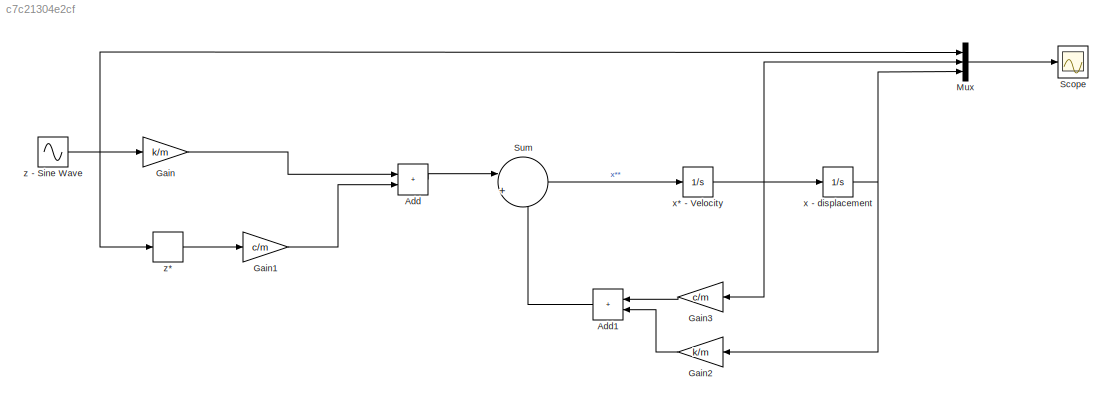
MODEL slx_c7c21304e2cf
KIND model
CONFIG AbsTol = auto
CONFIG EnableMultiTasking = off
CONFIG FixedStep = auto
CONFIG MaxStep = auto
CONFIG MinStep = auto
CONFIG RelTol = 1e-3
CONFIG SampleTimeConstraint = Unconstrained
CONFIG SolverName = ode23t
CONFIG StartTime = 0.0
CONFIG StopTime = 20
BLOCK [Integrator]  x - displacement
BLOCK [Sum] Add
  IconShape = rectangular
BLOCK [Sum] Add1
  IconShape = rectangular
BLOCK [Gain] Gain
  Gain = k/m
BLOCK [Gain] Gain1
  Gain = c/m
BLOCK [Gain] Gain2
  Gain = k/m
BLOCK [Gain] Gain3
  Gain = c/m
  NameLocation = top
BLOCK [Mux] Mux
  DisplayOption = bar
  Inputs = 3
BLOCK [Scope] Scope
  ActiveDisplayYMaximum = 2.5922864931021494
  ActiveDisplayYMinimum = -2.1500339777227713
  Floating = off
  GraphicalSettings = {"AxesScalingProperties":{"AlignXAxis":"Center","AlignYAxis":"Center","AutoScaleXAxisLimits":false,"AxesScaling":"Manual","AxesScalingNumUpdates":10,"ExpandOnly":true,"ScaleAxesLimitsAtStop":false,"XAxisDataRange":100,"YAxisDataRange":80},"DisplayProperties":{"ColorOrder":["auto","auto","auto","auto","auto","auto","auto","auto","auto","auto","auto","auto","auto","auto","auto","auto","auto","auto",...<+2278ch>
  MultipleDisplayCache = [{"MaxYLimMag":2.246650611843775,"MaxYLimReal":2.5922864931021494,"MinYLimMag":0,"MinYLimReal":-2.1500339777227713,"PlotAsMagnitudePhase":false,"ShowGrid":true,"ShowLegend":true,"Title":"%<SignalLabel>","YLabel":""}]
  NumInputPorts = 1
  ScopeFrameLocation = window
  ShowLegend = on
  Visible = on
  WasSavedAsWebScope = on
  WindowPosition = [488.000000,222.000000,560.000000,420.000000,]
BLOCK [Sum] Sum
  Inputs = |+-
  NameLocation = top
BLOCK [Integrator] x* - Velocity
BLOCK [Sin] z - Sine Wave
  SampleTime = 0
BLOCK [Derivative] z*
NET  x - displacement:1 -> Gain2:1, Mux:3
LINE Add1:1 -> Sum:2
LINE Add:1 -> Sum:1
LINE Gain1:1 -> Add:2
LINE Gain2:1 -> Add1:2
LINE Gain3:1 -> Add1:1
LINE Gain:1 -> Add:1
LINE Mux:1 -> Scope:1
LINE Sum:1 -> x* - Velocity:1
NET x* - Velocity:1 ->  x - displacement:1, Gain3:1, Mux:2
NET z - Sine Wave:1 -> Gain:1, Mux:1, z*:1
LINE z*:1 -> Gain1:1
note: NET lines group one-source signal fan-out (src -> all destinations, sorted); 1:1 wires keep LINE
